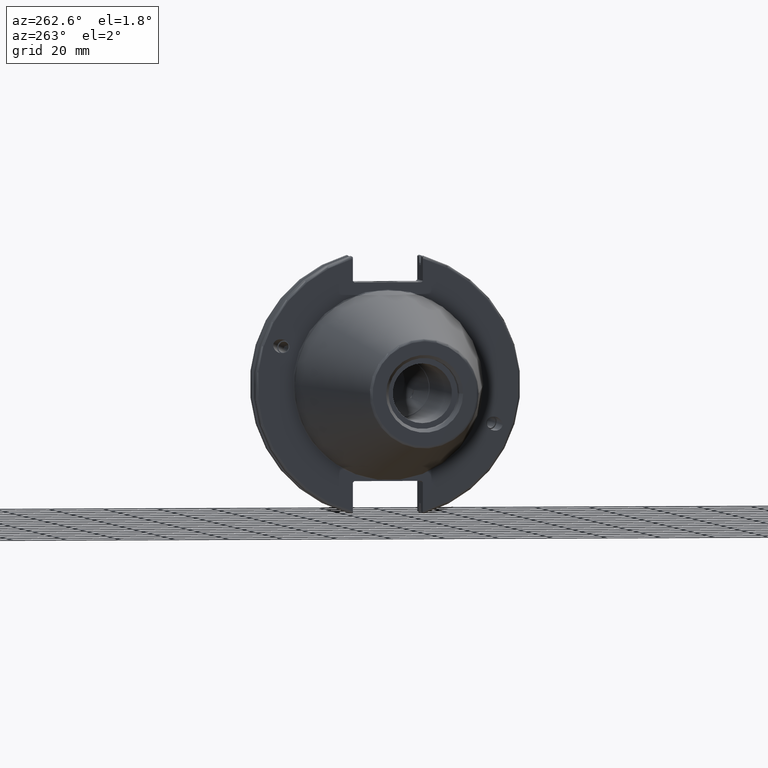
[diagram: clean part render]
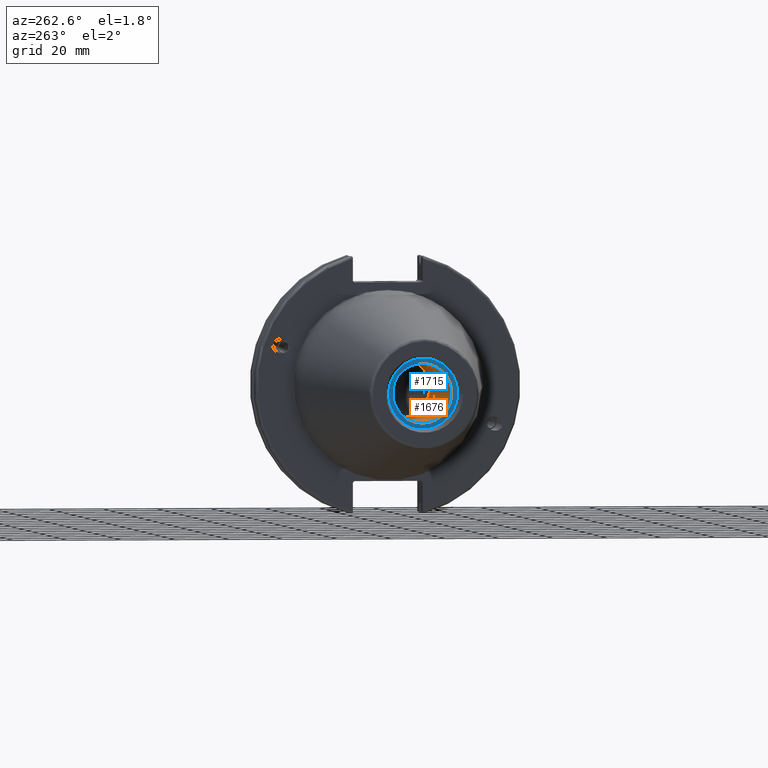
[diagram: same view with the hole feature highlighted: cylindrical wall and planar end face, labeled with their STEP entity ids]
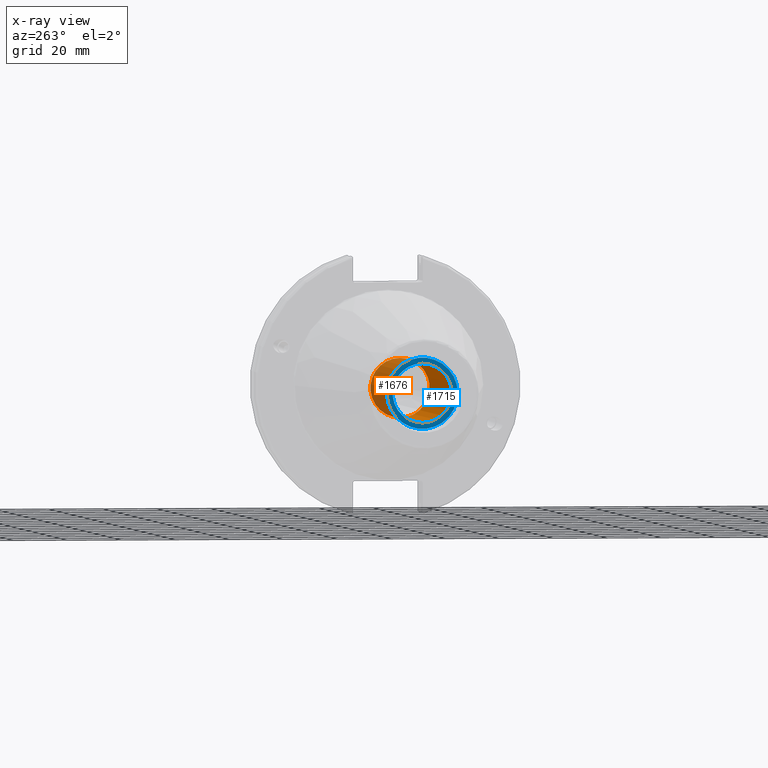
[diagram: x-ray of the same camera — body ghosted, the hole faces saturated]
A machine part, auxiliary view. The highlighted faces form one hole feature of diameter 21.971 mm: the cylindrical wall (entity #1676, orange) and its adjacent planar end face (entity #1715, blue) — they share a circular edge in the B-rep.
The next image is the same camera in x-ray (body ghosted, the hole faces saturated) — the bore reads through the body.
Wall:
#165=CIRCLE('',#1845,10.9855);
#166=CIRCLE('',#1847,10.9855);
#242=FACE_OUTER_BOUND('',#353,.T.);
#353=EDGE_LOOP('',(#1350,#1351,#1352,#1353));
#512=LINE('',#3256,#613);
#613=VECTOR('',#2182,10.9855);
#778=VERTEX_POINT('',#3250);
#779=VERTEX_POINT('',#3254);
#986=EDGE_CURVE('',#778,#778,#165,.T.);
#988=EDGE_CURVE('',#779,#779,#166,.T.);
#989=EDGE_CURVE('',#779,#778,#512,.T.);
#1350=ORIENTED_EDGE('',*,*,#988,.F.);
#1351=ORIENTED_EDGE('',*,*,#989,.T.);
#1352=ORIENTED_EDGE('',*,*,#986,.F.);
#1353=ORIENTED_EDGE('',*,*,#989,.F.);
#1620=CYLINDRICAL_SURFACE('',#1846,10.9855);
#1676=ADVANCED_FACE('',(#242),#1620,.F.);
#1845=AXIS2_PLACEMENT_3D('',#3251,#2175,#2176);
#1846=AXIS2_PLACEMENT_3D('',#3253,#2178,#2179);
#1847=AXIS2_PLACEMENT_3D('',#3255,#2180,#2181);
#2175=DIRECTION('center_axis',(-1.,0.,0.));
#2176=DIRECTION('ref_axis',(0.,0.,1.));
#2178=DIRECTION('center_axis',(-1.,0.,0.));
#2179=DIRECTION('ref_axis',(0.,0.,1.));
#2180=DIRECTION('center_axis',(1.,0.,0.));
#2181=DIRECTION('ref_axis',(0.,0.,1.));
#2182=DIRECTION('',(1.,0.,0.));
#3250=CARTESIAN_POINT('',(-31.6,-1.34533574120333E-15,-10.9855));
#3251=CARTESIAN_POINT('Origin',(-31.6,0.,0.));
#3253=CARTESIAN_POINT('Origin',(-66.6,0.,0.));
#3254=CARTESIAN_POINT('',(-95.25,1.34533574120333E-15,-10.9855));
#3255=CARTESIAN_POINT('Origin',(-95.25,0.,0.));
#3256=CARTESIAN_POINT('',(-66.6,-1.34533574120333E-15,-10.9855));
End face:
#54=FACE_BOUND('',#398,.T.);
#89=PLANE('',#1910);
#166=CIRCLE('',#1847,10.9855);
#191=CIRCLE('',#1911,13.1);
#281=FACE_OUTER_BOUND('',#397,.T.);
#397=EDGE_LOOP('',(#1564));
#398=EDGE_LOOP('',(#1565));
#779=VERTEX_POINT('',#3254);
#834=VERTEX_POINT('',#3554);
#988=EDGE_CURVE('',#779,#779,#166,.T.);
#1082=EDGE_CURVE('',#834,#834,#191,.T.);
#1564=ORIENTED_EDGE('',*,*,#1082,.F.);
#1565=ORIENTED_EDGE('',*,*,#988,.T.);
#1715=ADVANCED_FACE('',(#281,#54),#89,.T.);
#1847=AXIS2_PLACEMENT_3D('',#3255,#2180,#2181);
#1910=AXIS2_PLACEMENT_3D('',#3553,#2351,#2352);
#1911=AXIS2_PLACEMENT_3D('',#3555,#2353,#2354);
#2180=DIRECTION('center_axis',(1.,0.,0.));
#2181=DIRECTION('ref_axis',(0.,0.,1.));
#2351=DIRECTION('center_axis',(-1.,0.,0.));
#2352=DIRECTION('ref_axis',(0.,0.,1.));
#2353=DIRECTION('center_axis',(1.,0.,0.));
#2354=DIRECTION('ref_axis',(0.,0.,-1.));
#3254=CARTESIAN_POINT('',(-95.25,1.34533574120333E-15,-10.9855));
#3255=CARTESIAN_POINT('Origin',(-95.25,0.,0.));
#3553=CARTESIAN_POINT('Origin',(-95.25,13.1,0.));
#3554=CARTESIAN_POINT('',(-95.25,-13.1,-1.60428730688303E-15));
#3555=CARTESIAN_POINT('Origin',(-95.25,0.,0.));